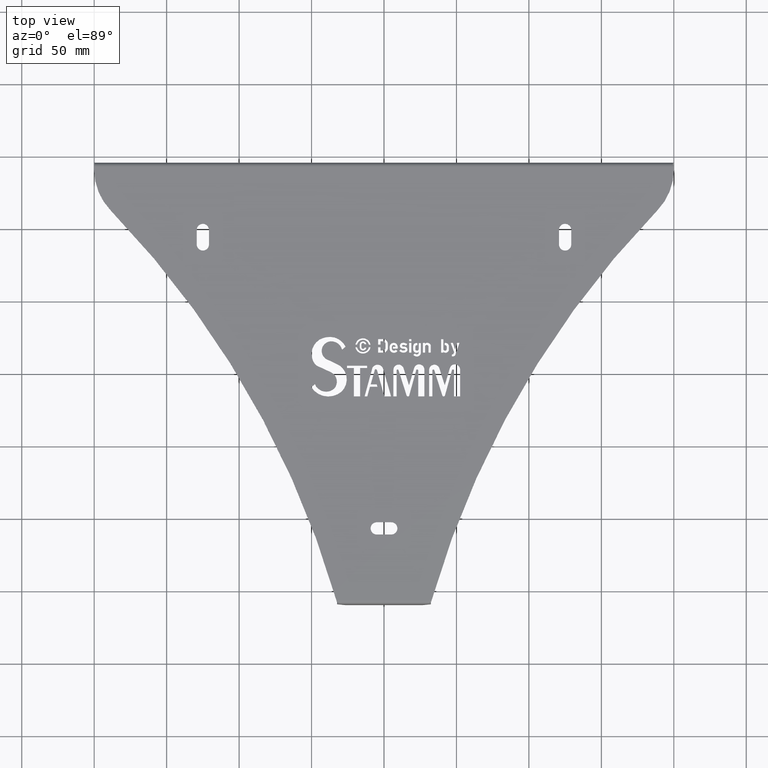
[diagram: clean part render]
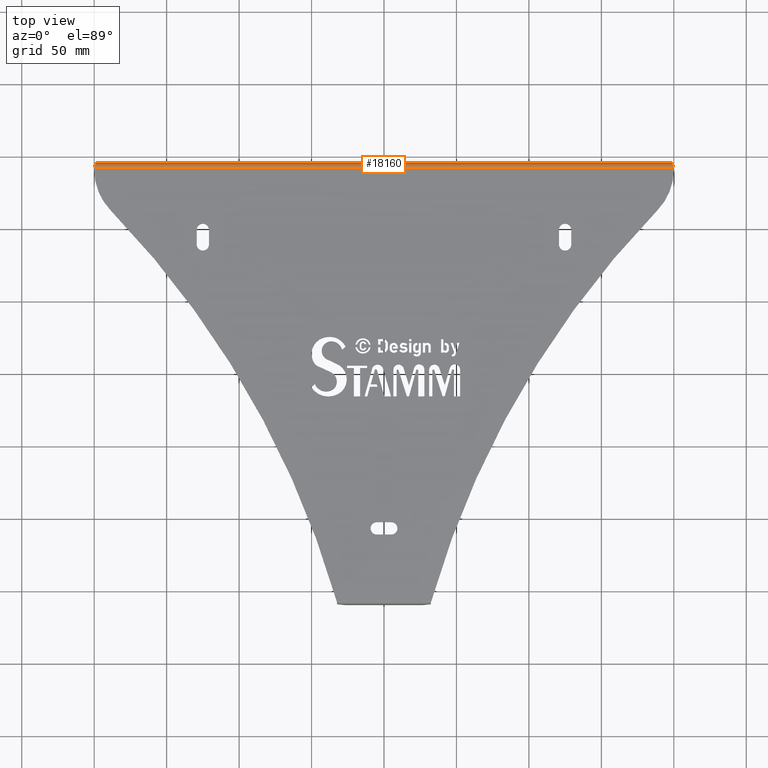
[diagram: same view with one face highlighted and labeled with its STEP entity id]
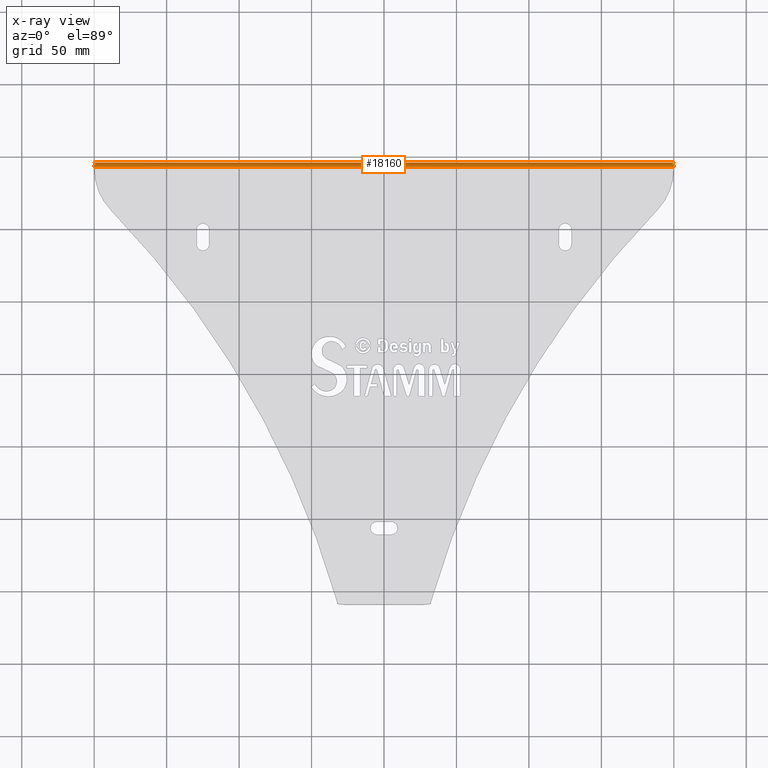
[diagram: x-ray of the same camera — body ghosted, the highlighted face saturated]
A machine part, top view. The second image highlights one B-rep face of the part: STEP entity #18160.
The next image is the same camera in x-ray: the body ghosted, the highlighted face saturated — about 0% of this face is hidden behind the body in this view.
In plain terms, the highlighted cylindrical surface (edge-blend (fillet) strip) has radius 3 mm, axis along (-1, 0, -0).
Its self-contained STEP definition (entity closure, byte-faithful):
#604 = CARTESIAN_POINT ( 'NONE',  ( 199.2099422473665982, 144.6610443732081421, 0.8803391113971718029 ) ) ;
#818 = B_SPLINE_CURVE_WITH_KNOTS ( 'NONE', 3,
 ( #24284, #8204, #15906, #48652 ),
 .UNSPECIFIED., .F., .F.,
 ( 4, 4 ),
 ( 0.000000000000000000, 1.000000000000000000 ),
 .UNSPECIFIED. ) ;
#906 = EDGE_CURVE ( 'NONE', #39478, #34352, #20701, .T. ) ;
#1531 = VERTEX_POINT ( 'NONE', #5269 ) ;
#1816 = DIRECTION ( 'NONE',  ( 0.000000000000000000, 0.000000000000000000, 1.000000000000000000 ) ) ;
#2073 = CARTESIAN_POINT ( 'NONE',  ( -199.7366474157887808, 145.0917359256949055, 0.2207767310421568374 ) ) ;
#2482 = CARTESIAN_POINT ( 'NONE',  ( -199.9999999999999432, 143.1680734333228884, 1.878648889976082481 ) ) ;
#3268 = ORIENTED_EDGE ( 'NONE', *, *, #17703, .T. ) ;
#4002 = VECTOR ( 'NONE', #20558, 1000.000000000000000 ) ;
#4113 = CARTESIAN_POINT ( 'NONE',  ( 1.868671883897825446E-11, 145.3234548399174173, -1.000000000025702551 ) ) ;
#5237 = AXIS2_PLACEMENT_3D ( 'NONE', #43148, #5941, #34385 ) ;
#5269 = CARTESIAN_POINT ( 'NONE',  ( -199.2099422473663992, 144.2037939513060394, 1.337589533338784387 ) ) ;
#5941 = DIRECTION ( 'NONE',  ( -1.000000000000000000, 1.158922661308452483E-13, 3.221494289023969449E-14 ) ) ;
#6417 = VERTEX_POINT ( 'NONE', #604 ) ;
#6564 = CARTESIAN_POINT ( 'NONE',  ( -199.9999999999997442, 142.3234548399687753, 2.000000000000000000 ) ) ;
#6682 = AXIS2_PLACEMENT_3D ( 'NONE', #13455, #25782, #1816 ) ;
#6856 = ORIENTED_EDGE ( 'NONE', *, *, #32424, .T. ) ;
#7142 = CARTESIAN_POINT ( 'NONE',  ( -199.7366474157887808, 143.5442315708689875, 1.768281085788770080 ) ) ;
#7955 = DIRECTION ( 'NONE',  ( -1.202741610010585158E-13, -1.000000000000000000, 0.000000000000000000 ) ) ;
#8204 = CARTESIAN_POINT ( 'NONE',  ( -199.1222202092944826, 144.5551564829139863, 1.011976230819014333 ) ) ;
#8460 = VERTEX_POINT ( 'NONE', #24125 ) ;
#8851 = B_SPLINE_CURVE_WITH_KNOTS ( 'NONE', 3,
 ( #48022, #27774, #22948, #10978 ),
 .UNSPECIFIED., .F., .F.,
 ( 4, 4 ),
 ( 0.000000000000000000, 1.000000000000000000 ),
 .UNSPECIFIED. ) ;
#8995 = EDGE_CURVE ( 'NONE', #43835, #39478, #30958, .T. ) ;
#9107 = DIRECTION ( 'NONE',  ( -1.000000000000000000, 1.285083151003618696E-13, -0.000000000000000000 ) ) ;
#9420 = CIRCLE ( 'NONE', #16743, 3.000000000000002665 ) ;
#9781 = CYLINDRICAL_SURFACE ( 'NONE', #31971, 3.000000000000002665 ) ;
#9843 = CARTESIAN_POINT ( 'NONE',  ( 199.1222202092945395, 144.4087220331106494, 1.172746954327655411 ) ) ;
#10727 = CARTESIAN_POINT ( 'NONE',  ( -199.2099422473663992, 144.2037939513060394, 1.337589533338784387 ) ) ;
#10962 = VERTEX_POINT ( 'NONE', #17959 ) ;
#10978 = CARTESIAN_POINT ( 'NONE',  ( 200.0000000000000568, 145.2021037298718511, -0.1553814065722772531 ) ) ;
#11013 = CARTESIAN_POINT ( 'NONE',  ( -199.2099422473664561, 144.6610443732112117, 0.8803391114570128240 ) ) ;
#11856 = VERTEX_POINT ( 'NONE', #28803 ) ;
#12056 = EDGE_CURVE ( 'NONE', #34352, #6417, #37179, .T. ) ;
#12527 = EDGE_CURVE ( 'NONE', #8460, #1531, #818, .T. ) ;
#12662 = VERTEX_POINT ( 'NONE', #43586 ) ;
#12748 = CARTESIAN_POINT ( 'NONE',  ( -200.0000000000002842, 142.3234548399687753, -1.000000000000000000 ) ) ;
#13455 = CARTESIAN_POINT ( 'NONE',  ( 200.0000000000000000, 142.3234548399173605, -1.000000000000000000 ) ) ;
#13704 = ORIENTED_EDGE ( 'NONE', *, *, #12527, .T. ) ;
#15906 = CARTESIAN_POINT ( 'NONE',  ( -199.1222202092944258, 144.4087220331062440, 1.172746954380976980 ) ) ;
#16613 = CARTESIAN_POINT ( 'NONE',  ( 199.2099422473665413, 144.2037939513146796, 1.337589533290639121 ) ) ;
#16743 = AXIS2_PLACEMENT_3D ( 'NONE', #12748, #41327, #7955 ) ;
#17703 = EDGE_CURVE ( 'NONE', #12662, #38298, #21302, .T. ) ;
#17959 = CARTESIAN_POINT ( 'NONE',  ( -199.9999999999999432, 143.1680734333228884, 1.878648889976082481 ) ) ;
#18160 = ADVANCED_FACE ( 'NONE', ( #32840 ), #9781, .T. ) ;
#19950 = CARTESIAN_POINT ( 'NONE',  ( 199.9999999999999716, 145.3234548398916957, -1.000000000051404214 ) ) ;
#20360 = DIRECTION ( 'NONE',  ( -3.700743415417188258E-14, 0.000000000000000000, -1.000000000000000000 ) ) ;
#20484 = ORIENTED_EDGE ( 'NONE', *, *, #37665, .T. ) ;
#20558 = DIRECTION ( 'NONE',  ( -1.000000000000000000, 1.285083151003618696E-13, 0.000000000000000000 ) ) ;
#20701 = B_SPLINE_CURVE_WITH_KNOTS ( 'NONE', 3,
 ( #37366, #28940, #41093, #16613 ),
 .UNSPECIFIED., .F., .F.,
 ( 4, 4 ),
 ( 0.000000000000000000, 1.000000000000000000 ),
 .UNSPECIFIED. ) ;
#21302 = CIRCLE ( 'NONE', #5237, 3.000000000000002665 ) ;
#21857 = CARTESIAN_POINT ( 'NONE',  ( 1.828974738074352797E-11, 142.3234548399430821, 2.000000000000000000 ) ) ;
#22948 = CARTESIAN_POINT ( 'NONE',  ( 199.7366474157889229, 145.0917359256749535, 0.2207767309710347292 ) ) ;
#23398 = CARTESIAN_POINT ( 'NONE',  ( 200.0000000000000000, 143.1680734333454552, 1.878648889954378953 ) ) ;
#24125 = CARTESIAN_POINT ( 'NONE',  ( -199.2099422473664561, 144.6610443732112117, 0.8803391114570128240 ) ) ;
#24284 = CARTESIAN_POINT ( 'NONE',  ( -199.2099422473664561, 144.6610443732112117, 0.8803391114570128240 ) ) ;
#25573 = CARTESIAN_POINT ( 'NONE',  ( 199.2099422473665982, 144.6610443732081421, 0.8803391113971718029 ) ) ;
#25782 = DIRECTION ( 'NONE',  ( -1.000000000000000000, 0.000000000000000000, 0.000000000000000000 ) ) ;
#26514 = EDGE_LOOP ( 'NONE', ( #31870, #20484, #41063, #27665, #40845, #35255, #6856, #3268, #42295, #50805, #47421, #13704 ) ) ;
#26790 = VERTEX_POINT ( 'NONE', #6564 ) ;
#27047 = EDGE_CURVE ( 'NONE', #45120, #11856, #9420, .T. ) ;
#27087 = LINE ( 'NONE', #4113, #4002 ) ;
#27123 = CARTESIAN_POINT ( 'NONE',  ( -199.9999999999999147, 145.2021037299015234, -0.1553814064981801635 ) ) ;
#27450 = B_SPLINE_CURVE_WITH_KNOTS ( 'NONE', 3,
 ( #27123, #2073, #31233, #11013 ),
 .UNSPECIFIED., .F., .F.,
 ( 4, 4 ),
 ( 0.000000000000000000, 1.000000000000000000 ),
 .UNSPECIFIED. ) ;
#27665 = ORIENTED_EDGE ( 'NONE', *, *, #8995, .T. ) ;
#27774 = CARTESIAN_POINT ( 'NONE',  ( 199.4732948315777605, 144.9067516077935238, 0.5748821561388103296 ) ) ;
#27781 = B_SPLINE_CURVE_WITH_KNOTS ( 'NONE', 3,
 ( #10727, #51360, #7142, #2482 ),
 .UNSPECIFIED., .F., .F.,
 ( 4, 4 ),
 ( 0.000000000000000000, 1.000000000000000000 ),
 .UNSPECIFIED. ) ;
#28604 = VECTOR ( 'NONE', #46386, 1000.000000000000000 ) ;
#28803 = CARTESIAN_POINT ( 'NONE',  ( -199.9999999999999147, 145.2021037299015234, -0.1553814064981801635 ) ) ;
#28940 = CARTESIAN_POINT ( 'NONE',  ( 199.7366474157888661, 143.5442315708886838, 1.768281085757427373 ) ) ;
#30197 = DIRECTION ( 'NONE',  ( -1.295260195396014786E-13, -1.000000000000000000, 0.000000000000000000 ) ) ;
#30958 = CIRCLE ( 'NONE', #6682, 3.000000000000000000 ) ;
#31233 = CARTESIAN_POINT ( 'NONE',  ( -199.4732948315776184, 144.9067516078043525, 0.5748821562050512313 ) ) ;
#31870 = ORIENTED_EDGE ( 'NONE', *, *, #43937, .T. ) ;
#31971 = AXIS2_PLACEMENT_3D ( 'NONE', #41983, #9107, #30197 ) ;
#32198 = CARTESIAN_POINT ( 'NONE',  ( -200.0000000000000568, 142.3234548399687753, -1.000000000000000000 ) ) ;
#32424 = EDGE_CURVE ( 'NONE', #6417, #12662, #8851, .T. ) ;
#32715 = DIRECTION ( 'NONE',  ( 1.000000000000000000, -9.912290119226919436E-15, -3.565915880972523780E-14 ) ) ;
#32840 = FACE_OUTER_BOUND ( 'NONE', #26514, .T. ) ;
#33879 = CARTESIAN_POINT ( 'NONE',  ( 199.2099422473665413, 144.2037939513146796, 1.337589533290639121 ) ) ;
#34327 = EDGE_CURVE ( 'NONE', #43835, #26790, #45235, .T. ) ;
#34352 = VERTEX_POINT ( 'NONE', #33879 ) ;
#34385 = DIRECTION ( 'NONE',  ( -1.202741610010585158E-13, -1.000000000000000000, 0.000000000000000000 ) ) ;
#34697 = CARTESIAN_POINT ( 'NONE',  ( 200.0000000000000000, 142.3234548399173605, 2.000000000000000000 ) ) ;
#35255 = ORIENTED_EDGE ( 'NONE', *, *, #12056, .T. ) ;
#37179 = B_SPLINE_CURVE_WITH_KNOTS ( 'NONE', 3,
 ( #38271, #9843, #42003, #25573 ),
 .UNSPECIFIED., .F., .F.,
 ( 4, 4 ),
 ( 0.000000000000000000, 1.000000000000000000 ),
 .UNSPECIFIED. ) ;
#37366 = CARTESIAN_POINT ( 'NONE',  ( 200.0000000000000000, 143.1680734333454552, 1.878648889954378953 ) ) ;
#37665 = EDGE_CURVE ( 'NONE', #10962, #26790, #39176, .T. ) ;
#38246 = AXIS2_PLACEMENT_3D ( 'NONE', #32198, #32715, #20360 ) ;
#38271 = CARTESIAN_POINT ( 'NONE',  ( 199.2099422473665413, 144.2037939513146796, 1.337589533290639121 ) ) ;
#38298 = VERTEX_POINT ( 'NONE', #19950 ) ;
#39176 = CIRCLE ( 'NONE', #38246, 3.000000000000000000 ) ;
#39478 = VERTEX_POINT ( 'NONE', #23398 ) ;
#40845 = ORIENTED_EDGE ( 'NONE', *, *, #906, .T. ) ;
#41063 = ORIENTED_EDGE ( 'NONE', *, *, #34327, .F. ) ;
#41093 = CARTESIAN_POINT ( 'NONE',  ( 199.4732948315777321, 143.8983369960564005, 1.583296767875964184 ) ) ;
#41327 = DIRECTION ( 'NONE',  ( 1.000000000000000000, -1.158922661300205415E-13, -3.221494289320601975E-14 ) ) ;
#41983 = CARTESIAN_POINT ( 'NONE',  ( 400.0173366298031965, 142.3234548398916672, -1.000000000000000000 ) ) ;
#42003 = CARTESIAN_POINT ( 'NONE',  ( 199.1222202092945679, 144.5551564829142421, 1.011976230761963524 ) ) ;
#42295 = ORIENTED_EDGE ( 'NONE', *, *, #43598, .T. ) ;
#42786 = CARTESIAN_POINT ( 'NONE',  ( -199.9999999999998863, 145.3234548399687753, -0.9999999999614870294 ) ) ;
#43148 = CARTESIAN_POINT ( 'NONE',  ( 199.9999999999997158, 142.3234548399173605, -1.000000000000000000 ) ) ;
#43586 = CARTESIAN_POINT ( 'NONE',  ( 200.0000000000000568, 145.2021037298718511, -0.1553814065722772531 ) ) ;
#43598 = EDGE_CURVE ( 'NONE', #38298, #45120, #27087, .T. ) ;
#43835 = VERTEX_POINT ( 'NONE', #34697 ) ;
#43937 = EDGE_CURVE ( 'NONE', #1531, #10962, #27781, .T. ) ;
#45120 = VERTEX_POINT ( 'NONE', #42786 ) ;
#45235 = LINE ( 'NONE', #21857, #28604 ) ;
#46386 = DIRECTION ( 'NONE',  ( -1.000000000000000000, 1.285083151003618696E-13, -0.000000000000000000 ) ) ;
#47421 = ORIENTED_EDGE ( 'NONE', *, *, #48303, .T. ) ;
#48022 = CARTESIAN_POINT ( 'NONE',  ( 199.2099422473665982, 144.6610443732081421, 0.8803391113971718029 ) ) ;
#48303 = EDGE_CURVE ( 'NONE', #11856, #8460, #27450, .T. ) ;
#48652 = CARTESIAN_POINT ( 'NONE',  ( -199.2099422473663992, 144.2037939513060394, 1.337589533338784387 ) ) ;
#50805 = ORIENTED_EDGE ( 'NONE', *, *, #27047, .T. ) ;
#51360 = CARTESIAN_POINT ( 'NONE',  ( -199.4732948315775900, 143.8983369960414223, 1.583296767916345216 ) ) ;